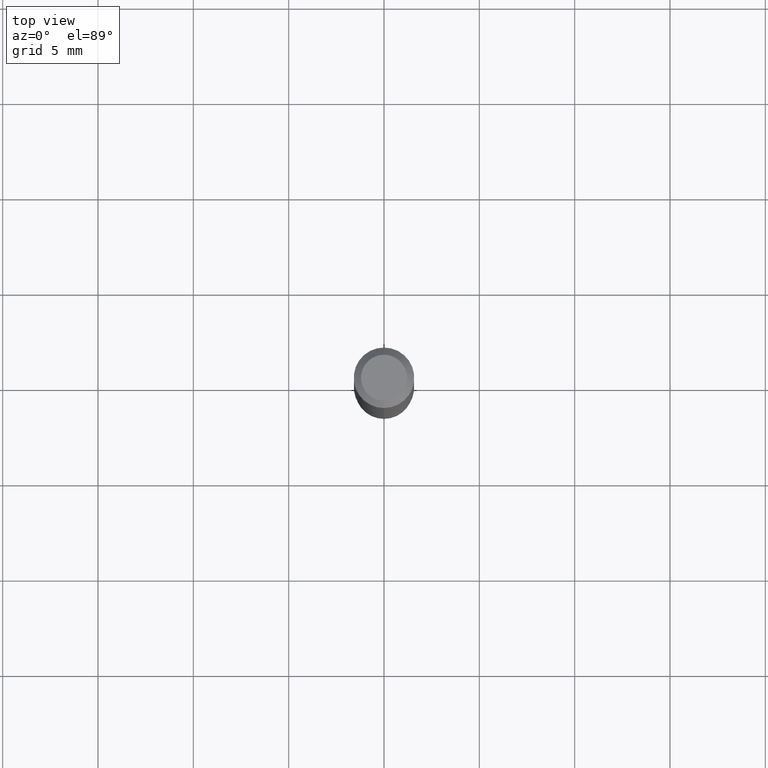
[diagram: clean part render]
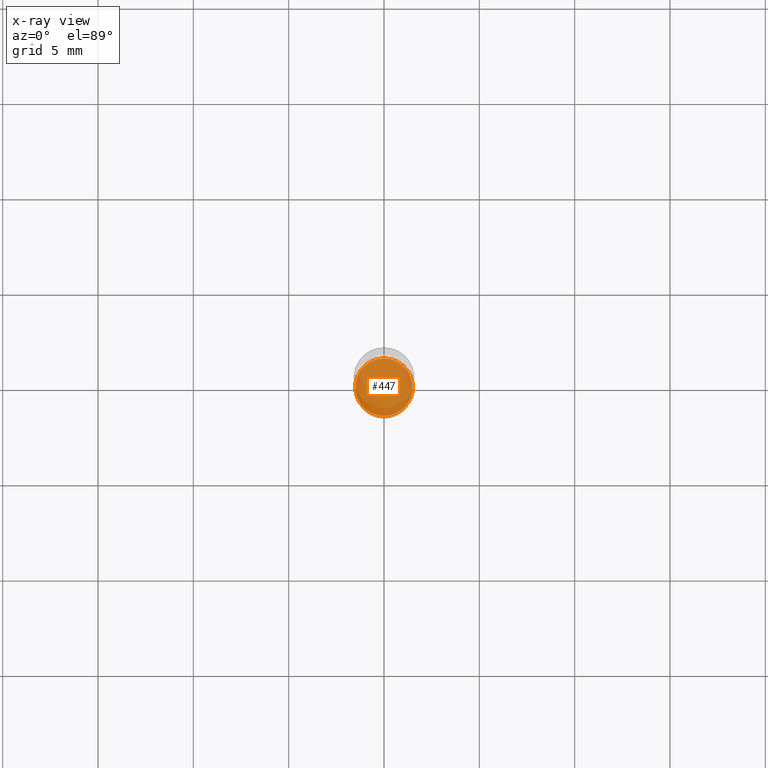
[diagram: x-ray — body ghosted, one internal face saturated and labeled with its STEP entity id]
A machine part, top view, then the same camera in x-ray: the body is ghosted and one INTERNAL B-rep face — a face not visible from any outside direction — is saturated and labeled: STEP entity #447.
In plain terms, the highlighted planar face has unit normal (-0, 0, 1).
Its self-contained STEP definition (entity closure, byte-faithful):
#14 = AXIS2_PLACEMENT_3D ( 'NONE', #196, #434, #189 ) ;
#40 = ORIENTED_EDGE ( 'NONE', *, *, #139, .F. ) ;
#49 = DIRECTION ( 'NONE',  ( -6.982962677686265922E-15, -1.000000000000000000, 4.591341165822291216E-15 ) ) ;
#73 = DIRECTION ( 'NONE',  ( -6.982962677686265922E-15, -1.000000000000000000, 4.591341165822291216E-15 ) ) ;
#81 = CARTESIAN_POINT ( 'NONE',  ( 2.787803110619434407E-29, -3.980333590378373068E-15, -1.140000000000000124 ) ) ;
#104 = CARTESIAN_POINT ( 'NONE',  ( 4.245492846166878976E-16, 0.05949999999999602135, -1.140000000000000346 ) ) ;
#139 = EDGE_CURVE ( 'NONE', #354, #287, #484, .T. ) ;
#141 = AXIS2_PLACEMENT_3D ( 'NONE', #224, #199, #73 ) ;
#189 = DIRECTION ( 'NONE',  ( -6.982962677686265922E-15, -1.000000000000000000, 3.491520693314361482E-15 ) ) ;
#196 = CARTESIAN_POINT ( 'NONE',  ( 2.787803110619434407E-29, -3.980333590378373068E-15, -1.140000000000000124 ) ) ;
#199 = DIRECTION ( 'NONE',  ( -2.445441325104766561E-29, 3.491520693314361482E-15, 1.000000000000000000 ) ) ;
#208 = ORIENTED_EDGE ( 'NONE', *, *, #464, .F. ) ;
#224 = CARTESIAN_POINT ( 'NONE',  ( 2.787803110619434407E-29, -3.980333590378373068E-15, -1.140000000000000124 ) ) ;
#232 = FACE_OUTER_BOUND ( 'NONE', #249, .T. ) ;
#236 = AXIS2_PLACEMENT_3D ( 'NONE', #81, #438, #49 ) ;
#249 = EDGE_LOOP ( 'NONE', ( #40, #208 ) ) ;
#261 = CIRCLE ( 'NONE', #141, 0.05949999999999999734 ) ;
#287 = VERTEX_POINT ( 'NONE', #104 ) ;
#314 = CARTESIAN_POINT ( 'NONE',  ( -4.154862793223048825E-16, -0.05950000000000398026, -1.139999999999999902 ) ) ;
#354 = VERTEX_POINT ( 'NONE', #314 ) ;
#430 = PLANE ( 'NONE',  #14 ) ;
#434 = DIRECTION ( 'NONE',  ( -2.445441325104766281E-29, 3.491520693314361482E-15, 1.000000000000000000 ) ) ;
#438 = DIRECTION ( 'NONE',  ( -2.445441325104766561E-29, 3.491520693314361482E-15, 1.000000000000000000 ) ) ;
#447 = ADVANCED_FACE ( 'NONE', ( #232 ), #430, .F. ) ;
#464 = EDGE_CURVE ( 'NONE', #287, #354, #261, .T. ) ;
#484 = CIRCLE ( 'NONE', #236, 0.05949999999999999734 ) ;